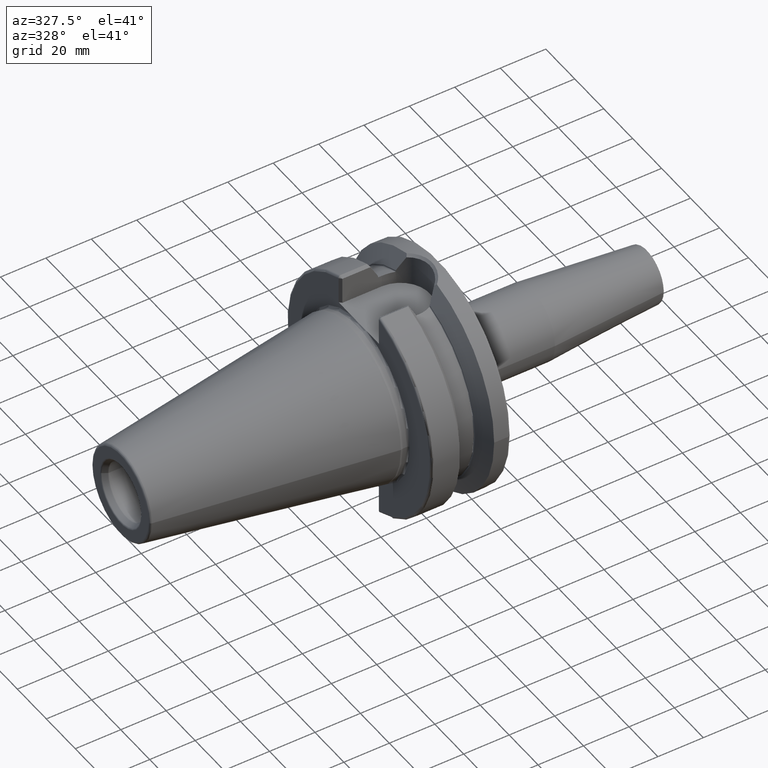
[diagram: clean part render]
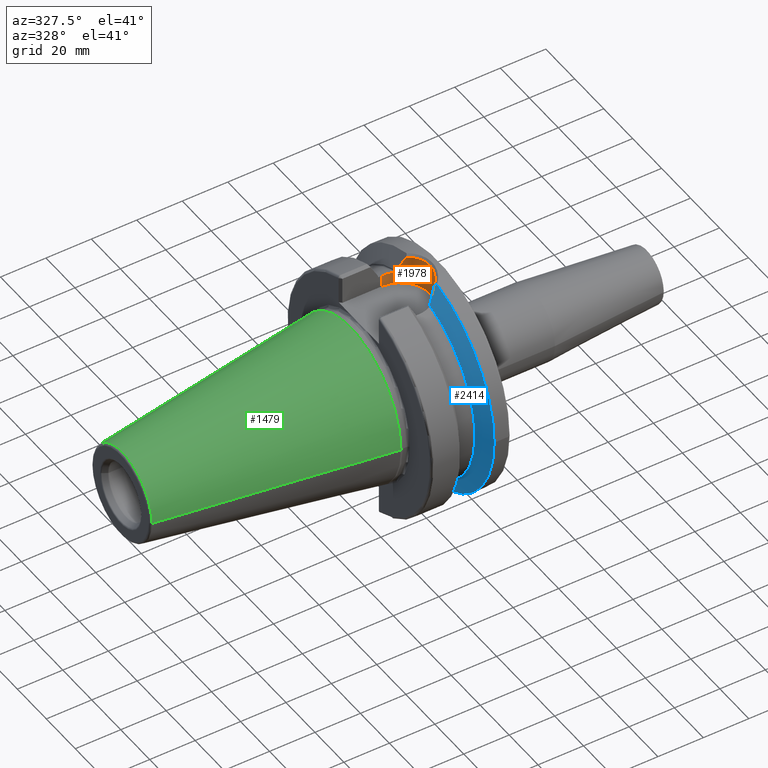
[diagram: same view with three faces highlighted in distinct colors, each labeled with its STEP entity id]
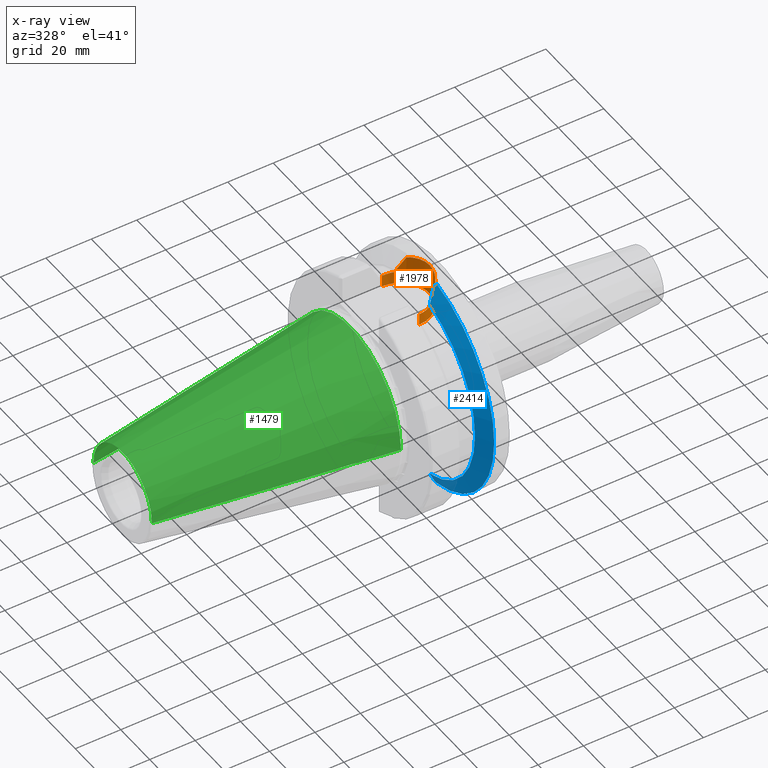
[diagram: x-ray of the same camera — body ghosted, the three highlighted faces saturated]
A machine part, auxiliary view with three faces highlighted in distinct colors.
The next image is the same camera in x-ray (body ghosted, the three faces saturated) — at least one of them is partly hidden behind the body in this view.
Their STEP definitions:

[orange] entity #1978 — the highlighted cylindrical surface (edge-blend (fillet) strip) has radius 12.9025 mm, axis along (0, 0, 1).
#361=CARTESIAN_POINT('',(2.64875E1,1.183447955129E1,4.068888937720E1));
#362=CARTESIAN_POINT('',(2.593767013310E1,1.207328392825E1,4.061943244291E1));
#363=CARTESIAN_POINT('',(2.482251458198E1,1.246756636177E1,4.050035379602E1));
#364=CARTESIAN_POINT('',(2.309259987866E1,1.282394305612E1,4.038817378856E1));
#365=CARTESIAN_POINT('',(2.193211835169E1,1.29025E1,4.036293000700E1));
#366=CARTESIAN_POINT('',(2.13475E1,1.29025E1,4.036293000700E1));
#380=CARTESIAN_POINT('',(2.13475E1,-1.29025E1,4.036293000700E1));
#381=CARTESIAN_POINT('',(2.193211835188E1,-1.29025E1,4.036293000700E1));
#382=CARTESIAN_POINT('',(2.309259987910E1,-1.282394305606E1,4.038817378858E1));
#383=CARTESIAN_POINT('',(2.482251458205E1,-1.246756636174E1,4.050035379603E1));
#384=CARTESIAN_POINT('',(2.593767013313E1,-1.207328392824E1,4.061943244291E1));
#385=CARTESIAN_POINT('',(2.64875E1,-1.183447955129E1,4.068888937720E1));
#468=DIRECTION('',(0.E0,0.E0,1.E0));
#469=VECTOR('',#468,5.162930007E0);
#470=CARTESIAN_POINT('',(2.13475E1,-1.29025E1,3.52E1));
#471=LINE('',#470,#469);
#472=CARTESIAN_POINT('',(2.67375E1,1.172273032403E1,4.098131548340E1));
#473=CARTESIAN_POINT('',(2.67375E1,1.172273032403E1,4.095473554554E1));
#474=CARTESIAN_POINT('',(2.672998645392E1,1.172618901674E1,4.090260058967E1));
#475=CARTESIAN_POINT('',(2.669626231199E1,1.174163763665E1,4.082489375053E1));
#476=CARTESIAN_POINT('',(2.663891469758E1,1.176763685688E1,4.075541966358E1));
#477=CARTESIAN_POINT('',(2.656490253593E1,1.180065791496E1,4.070695762482E1));
#478=CARTESIAN_POINT('',(2.651408131936E1,1.182293464297E1,4.069224724672E1));
#479=CARTESIAN_POINT('',(2.64875E1,1.183447955129E1,4.068888937720E1));
#481=DIRECTION('',(0.E0,0.E0,1.E0));
#482=VECTOR('',#481,4.638266941984E-1);
#483=CARTESIAN_POINT('',(2.67375E1,1.172273032403E1,4.098131548340E1));
#484=LINE('',#483,#482);
#485=CARTESIAN_POINT('',(3.006745596523E1,9.509830398822E0,4.790396451831E1));
#486=CARTESIAN_POINT('',(2.975376574683E1,9.797465906135E0,4.729293338983E1));
#487=CARTESIAN_POINT('',(2.908879078217E1,1.035010846105E1,4.599889189585E1));
#488=CARTESIAN_POINT('',(2.797778721927E1,1.109635283633E1,4.384252820130E1));
#489=CARTESIAN_POINT('',(2.716331106798E1,1.152694644153E1,4.226698076473E1));
#490=CARTESIAN_POINT('',(2.67375E1,1.172273032403E1,4.144514217760E1));
#492=CARTESIAN_POINT('',(3.006745596523E1,9.509830398822E0,4.790396451831E1));
#493=CARTESIAN_POINT('',(3.025602323543E1,9.336962247659E0,4.794381122211E1));
#494=CARTESIAN_POINT('',(3.087555960284E1,8.733968449164E0,4.807865814963E1));
#495=CARTESIAN_POINT('',(3.182329079822E1,7.604954293039E0,4.830628782978E1));
#496=CARTESIAN_POINT('',(3.278245826289E1,6.066530119911E0,4.855976175201E1));
#497=CARTESIAN_POINT('',(3.351388652994E1,4.419183995064E0,4.876698535386E1));
#498=CARTESIAN_POINT('',(3.400760487019E1,2.694887506994E0,4.891354792853E1));
#499=CARTESIAN_POINT('',(3.425791062555E1,9.253265654410E-1,4.898989734734E1));
#500=CARTESIAN_POINT('',(3.426247528429E1,-8.590494541089E-1,4.899130238765E1));
#501=CARTESIAN_POINT('',(3.402134509987E1,-2.629406522498E0,4.891770358422E1));
#502=CARTESIAN_POINT('',(3.353667477174E1,-4.355883298183E0,4.877363209671E1));
#503=CARTESIAN_POINT('',(3.281400217688E1,-6.006662285743E0,4.856845191646E1));
#504=CARTESIAN_POINT('',(3.186306851566E1,-7.549823393820E0,4.831638541797E1));
#505=CARTESIAN_POINT('',(3.090696912501E1,-8.701095609486E0,4.808579201701E1));
#506=CARTESIAN_POINT('',(3.027267380653E1,-9.321685205845E0,4.794733903084E1));
#507=CARTESIAN_POINT('',(3.006746015187E1,-9.509826559925E0,4.790397267337E1));
#509=CARTESIAN_POINT('',(2.67375E1,-1.172273032403E1,4.144514217760E1));
#510=CARTESIAN_POINT('',(2.716326249817E1,-1.152696877347E1,4.226688702234E1));
#511=CARTESIAN_POINT('',(2.797767730262E1,-1.109641946289E1,4.384231514855E1));
#512=CARTESIAN_POINT('',(2.908877542636E1,-1.035012398508E1,4.599886190686E1));
#513=CARTESIAN_POINT('',(2.975376209181E1,-9.797469511785E0,4.729292626465E1));
#514=CARTESIAN_POINT('',(3.006746015187E1,-9.509826559925E0,4.790397267337E1));
#516=DIRECTION('',(0.E0,0.E0,1.E0));
#517=VECTOR('',#516,4.638266941984E-1);
#518=CARTESIAN_POINT('',(2.67375E1,-1.172273032403E1,4.098131548340E1));
#519=LINE('',#518,#517);
#520=CARTESIAN_POINT('',(2.64875E1,-1.183447955129E1,4.068888937720E1));
#521=CARTESIAN_POINT('',(2.651408131936E1,-1.182293464297E1,4.069224724672E1));
#522=CARTESIAN_POINT('',(2.656490253593E1,-1.180065791496E1,4.070695762482E1));
#523=CARTESIAN_POINT('',(2.663891469758E1,-1.176763685688E1,4.075541966358E1));
#524=CARTESIAN_POINT('',(2.669626231199E1,-1.174163763665E1,4.082489375053E1));
#525=CARTESIAN_POINT('',(2.672998645392E1,-1.172618901674E1,4.090260058967E1));
#526=CARTESIAN_POINT('',(2.67375E1,-1.172273032403E1,4.095473554554E1));
#527=CARTESIAN_POINT('',(2.67375E1,-1.172273032403E1,4.098131548340E1));
#656=DIRECTION('',(0.E0,0.E0,1.E0));
#657=VECTOR('',#656,5.162930007E0);
#658=CARTESIAN_POINT('',(2.13475E1,1.29025E1,3.52E1));
#659=LINE('',#658,#657);
#691=CARTESIAN_POINT('',(2.13475E1,0.E0,3.52E1));
#692=DIRECTION('',(0.E0,0.E0,1.E0));
#693=DIRECTION('',(0.E0,-1.E0,0.E0));
#694=AXIS2_PLACEMENT_3D('',#691,#692,#693);
#1192=CARTESIAN_POINT('',(2.67375E1,-1.172273032403E1,4.098131548340E1));
#1194=VERTEX_POINT('',#1192);
#1197=CARTESIAN_POINT('',(2.64875E1,-1.183447955129E1,4.068888937720E1));
#1199=VERTEX_POINT('',#1197);
#1200=CARTESIAN_POINT('',(2.64875E1,1.183447955129E1,4.068888937720E1));
#1202=VERTEX_POINT('',#1200);
#1205=CARTESIAN_POINT('',(2.67375E1,1.172273032403E1,4.098131548340E1));
#1207=VERTEX_POINT('',#1205);
#1208=CARTESIAN_POINT('',(2.67375E1,1.172273032403E1,4.144514217760E1));
#1210=VERTEX_POINT('',#1208);
#1213=CARTESIAN_POINT('',(2.67375E1,-1.172273032403E1,4.144514217760E1));
#1215=VERTEX_POINT('',#1213);
#1306=CARTESIAN_POINT('',(2.13475E1,-1.29025E1,3.52E1));
#1307=CARTESIAN_POINT('',(2.13475E1,1.29025E1,3.52E1));
#1308=VERTEX_POINT('',#1306);
#1309=VERTEX_POINT('',#1307);
#1322=CARTESIAN_POINT('',(2.13475E1,1.29025E1,4.036293000700E1));
#1323=VERTEX_POINT('',#1322);
#1325=CARTESIAN_POINT('',(2.13475E1,-1.29025E1,4.036293000700E1));
#1326=VERTEX_POINT('',#1325);
#1328=VERTEX_POINT('',#514);
#1329=VERTEX_POINT('',#485);
#1953=CARTESIAN_POINT('',(2.13475E1,0.E0,3.52E1));
#1954=DIRECTION('',(0.E0,0.E0,1.E0));
#1955=DIRECTION('',(1.E0,0.E0,0.E0));
#1956=AXIS2_PLACEMENT_3D('',#1953,#1954,#1955);
#1957=CYLINDRICAL_SURFACE('',#1956,1.29025E1);
#1958=ORIENTED_EDGE('',*,*,#1862,.F.);
#1960=ORIENTED_EDGE('',*,*,#1959,.F.);
#1962=ORIENTED_EDGE('',*,*,#1961,.T.);
#1964=ORIENTED_EDGE('',*,*,#1963,.T.);
#1965=ORIENTED_EDGE('',*,*,#1844,.F.);
#1966=ORIENTED_EDGE('',*,*,#1935,.F.);
#1967=ORIENTED_EDGE('',*,*,#1907,.T.);
#1969=ORIENTED_EDGE('',*,*,#1968,.F.);
#1971=ORIENTED_EDGE('',*,*,#1970,.T.);
#1973=ORIENTED_EDGE('',*,*,#1972,.F.);
#1974=ORIENTED_EDGE('',*,*,#1919,.F.);
#1975=ORIENTED_EDGE('',*,*,#1948,.F.);
#1976=EDGE_LOOP('',(#1958,#1960,#1962,#1964,#1965,#1966,#1967,#1969,#1971,#1973,
#1974,#1975));
#1977=FACE_OUTER_BOUND('',#1976,.F.);
#1978=ADVANCED_FACE('',(#1977),#1957,.F.);
#367=B_SPLINE_CURVE_WITH_KNOTS('',3,(#361,#362,#363,#364,#365,#366),
.UNSPECIFIED.,.F.,.F.,(4,1,1,4),(0.E0,3.333333333333E-1,6.666666666667E-1,1.E0),
.UNSPECIFIED.);
#386=B_SPLINE_CURVE_WITH_KNOTS('',3,(#380,#381,#382,#383,#384,#385),
.UNSPECIFIED.,.F.,.F.,(4,1,1,4),(0.E0,3.333333333333E-1,6.666666666667E-1,1.E0),
.UNSPECIFIED.);
#480=B_SPLINE_CURVE_WITH_KNOTS('',3,(#472,#473,#474,#475,#476,#477,#478,#479),
.UNSPECIFIED.,.F.,.F.,(4,1,1,1,1,4),(0.E0,2.E-1,4.E-1,6.E-1,8.E-1,1.E0),
.UNSPECIFIED.);
#491=B_SPLINE_CURVE_WITH_KNOTS('',3,(#485,#486,#487,#488,#489,#490),
.UNSPECIFIED.,.F.,.F.,(4,1,1,4),(0.E0,3.333333333333E-1,6.666666666667E-1,1.E0),
.UNSPECIFIED.);
#508=B_SPLINE_CURVE_WITH_KNOTS('',3,(#492,#493,#494,#495,#496,#497,#498,#499,
#500,#501,#502,#503,#504,#505,#506,#507),.UNSPECIFIED.,.F.,.F.,(4,1,1,1,1,1,1,1,
1,1,1,1,1,4),(0.E0,3.546209800455E-2,1.196386243301E-1,2.038151506557E-1,
2.879916769813E-1,3.721682033068E-1,4.563447296324E-1,5.405212559580E-1,
6.246977822835E-1,7.088743086091E-1,7.930508349347E-1,8.772273612603E-1,
9.614038875858E-1,1.E0),.UNSPECIFIED.);
#515=B_SPLINE_CURVE_WITH_KNOTS('',3,(#509,#510,#511,#512,#513,#514),
.UNSPECIFIED.,.F.,.F.,(4,1,1,4),(0.E0,3.333333333333E-1,6.666666666667E-1,1.E0),
.UNSPECIFIED.);
#528=B_SPLINE_CURVE_WITH_KNOTS('',3,(#520,#521,#522,#523,#524,#525,#526,#527),
.UNSPECIFIED.,.F.,.F.,(4,1,1,1,1,4),(0.E0,2.E-1,4.E-1,6.E-1,8.E-1,1.E0),
.UNSPECIFIED.);
#695=CIRCLE('',#694,1.29025E1);
#1844=EDGE_CURVE('',#1202,#1323,#367,.T.);
#1862=EDGE_CURVE('',#1326,#1199,#386,.T.);
#1907=EDGE_CURVE('',#1207,#1210,#484,.T.);
#1919=EDGE_CURVE('',#1194,#1215,#519,.T.);
#1935=EDGE_CURVE('',#1207,#1202,#480,.T.);
#1948=EDGE_CURVE('',#1199,#1194,#528,.T.);
#1959=EDGE_CURVE('',#1308,#1326,#471,.T.);
#1961=EDGE_CURVE('',#1308,#1309,#695,.T.);
#1963=EDGE_CURVE('',#1309,#1323,#659,.T.);
#1968=EDGE_CURVE('',#1329,#1210,#491,.T.);
#1970=EDGE_CURVE('',#1329,#1328,#508,.T.);
#1972=EDGE_CURVE('',#1215,#1328,#515,.T.);

[blue] entity #2414 — the highlighted conical surface has half-angle 60 deg.
#245=CARTESIAN_POINT('',(3.073066823617E1,0.E0,0.E0));
#246=DIRECTION('',(1.E0,0.E0,0.E0));
#247=DIRECTION('',(0.E0,-1.E0,0.E0));
#248=AXIS2_PLACEMENT_3D('',#245,#246,#247);
#391=CARTESIAN_POINT('',(3.016210431090E1,-9.422168385896E0,-4.808834737145E1));
#392=CARTESIAN_POINT('',(2.984184465633E1,-9.721776927818E0,-4.746439031418E1));
#393=CARTESIAN_POINT('',(2.916110296190E1,-1.029742776940E1,-4.613939859477E1));
#394=CARTESIAN_POINT('',(2.801848253867E1,-1.107377940524E1,-4.392131510326E1));
#395=CARTESIAN_POINT('',(2.717774587881E1,-1.152030945269E1,-4.229484073698E1));
#396=CARTESIAN_POINT('',(2.67375E1,-1.172273032403E1,-4.144514217760E1));
#509=CARTESIAN_POINT('',(2.67375E1,-1.172273032403E1,4.144514217760E1));
#510=CARTESIAN_POINT('',(2.716326249817E1,-1.152696877347E1,4.226688702234E1));
#511=CARTESIAN_POINT('',(2.797767730262E1,-1.109641946289E1,4.384231514855E1));
#512=CARTESIAN_POINT('',(2.908877542636E1,-1.035012398508E1,4.599886190686E1));
#513=CARTESIAN_POINT('',(2.975376209181E1,-9.797469511785E0,4.729292626465E1));
#514=CARTESIAN_POINT('',(3.006746015187E1,-9.509826559925E0,4.790397267337E1));
#763=CARTESIAN_POINT('',(2.67375E1,0.E0,0.E0));
#764=DIRECTION('',(-1.E0,0.E0,0.E0));
#765=DIRECTION('',(0.E0,-2.721714149834E-1,-9.622487832499E-1));
#766=AXIS2_PLACEMENT_3D('',#763,#764,#765);
#768=CARTESIAN_POINT('',(3.073066823617E1,-1.024362896192E1,-4.892666166765E1));
#769=CARTESIAN_POINT('',(3.066616058198E1,-1.015105563406E1,-4.883189036884E1));
#770=CARTESIAN_POINT('',(3.053803749239E1,-9.966777409929E0,-4.864343408956E1));
#771=CARTESIAN_POINT('',(3.034851551012E1,-9.692952413043E0,-4.836399253968E1));
#772=CARTESIAN_POINT('',(3.022394652802E1,-9.512141392294E0,-4.817986911933E1));
#773=CARTESIAN_POINT('',(3.016210431090E1,-9.422168385896E0,-4.808834737145E1));
#792=CARTESIAN_POINT('',(3.073066823617E1,0.E0,0.E0));
#793=DIRECTION('',(1.E0,0.E0,0.E0));
#794=DIRECTION('',(0.E0,-2.094051574285E-1,9.778289625708E-1));
#795=AXIS2_PLACEMENT_3D('',#792,#793,#794);
#955=CARTESIAN_POINT('',(3.006746015187E1,-9.509826559925E0,4.790397267337E1));
#956=CARTESIAN_POINT('',(3.013934013849E1,-9.614488815529E0,4.801012460295E1));
#957=CARTESIAN_POINT('',(3.028430182064E1,-9.824984272055E0,4.822389705980E1));
#958=CARTESIAN_POINT('',(3.050537248019E1,-1.014426259119E1,4.854898701617E1));
#959=CARTESIAN_POINT('',(3.065516521337E1,-1.035945529402E1,4.876865319706E1));
#960=CARTESIAN_POINT('',(3.073066823617E1,-1.046764030696E1,4.887922526651E1));
#1212=CARTESIAN_POINT('',(2.67375E1,-1.172273032403E1,-4.144514217760E1));
#1213=CARTESIAN_POINT('',(2.67375E1,-1.172273032403E1,4.144514217760E1));
#1214=VERTEX_POINT('',#1212);
#1215=VERTEX_POINT('',#1213);
#1228=CARTESIAN_POINT('',(3.073066823617E1,-4.99875E1,-1.224340637448E-14));
#1229=CARTESIAN_POINT('',(3.073066823617E1,-1.024362896192E1,
-4.892666166765E1));
#1230=VERTEX_POINT('',#1228);
#1231=VERTEX_POINT('',#1229);
#1236=CARTESIAN_POINT('',(3.073066823617E1,-1.046764030696E1,4.887922526651E1));
#1237=VERTEX_POINT('',#1236);
#1328=VERTEX_POINT('',#514);
#1336=VERTEX_POINT('',#391);
#2397=CARTESIAN_POINT('',(2.873408411809E1,0.E0,0.E0));
#2398=DIRECTION('',(1.E0,0.E0,0.E0));
#2399=DIRECTION('',(0.E0,-1.E0,0.E0));
#2400=AXIS2_PLACEMENT_3D('',#2397,#2398,#2399);
#2401=CONICAL_SURFACE('',#2400,4.652931486589E1,6.E1);
#2403=ORIENTED_EDGE('',*,*,#2402,.T.);
#2404=ORIENTED_EDGE('',*,*,#1753,.T.);
#2406=ORIENTED_EDGE('',*,*,#2405,.T.);
#2407=ORIENTED_EDGE('',*,*,#1876,.T.);
#2408=ORIENTED_EDGE('',*,*,#1921,.T.);
#2409=ORIENTED_EDGE('',*,*,#1972,.T.);
#2411=ORIENTED_EDGE('',*,*,#2410,.T.);
#2412=EDGE_LOOP('',(#2403,#2404,#2406,#2407,#2408,#2409,#2411));
#2413=FACE_OUTER_BOUND('',#2412,.F.);
#2414=ADVANCED_FACE('',(#2413),#2401,.T.);
#249=CIRCLE('',#248,4.99875E1);
#397=B_SPLINE_CURVE_WITH_KNOTS('',3,(#391,#392,#393,#394,#395,#396),
.UNSPECIFIED.,.F.,.F.,(4,1,1,4),(0.E0,3.333333333333E-1,6.666666666667E-1,1.E0),
.UNSPECIFIED.);
#515=B_SPLINE_CURVE_WITH_KNOTS('',3,(#509,#510,#511,#512,#513,#514),
.UNSPECIFIED.,.F.,.F.,(4,1,1,4),(0.E0,3.333333333333E-1,6.666666666667E-1,1.E0),
.UNSPECIFIED.);
#767=CIRCLE('',#766,4.307112973177E1);
#774=B_SPLINE_CURVE_WITH_KNOTS('',3,(#768,#769,#770,#771,#772,#773),
.UNSPECIFIED.,.F.,.F.,(4,1,1,4),(0.E0,3.333333333333E-1,6.666666666667E-1,1.E0),
.UNSPECIFIED.);
#796=CIRCLE('',#795,4.99875E1);
#961=B_SPLINE_CURVE_WITH_KNOTS('',3,(#955,#956,#957,#958,#959,#960),
.UNSPECIFIED.,.F.,.F.,(4,1,1,4),(0.E0,3.333333333333E-1,6.666666666667E-1,1.E0),
.UNSPECIFIED.);
#1753=EDGE_CURVE('',#1230,#1231,#249,.T.);
#1876=EDGE_CURVE('',#1336,#1214,#397,.T.);
#1921=EDGE_CURVE('',#1214,#1215,#767,.T.);
#1972=EDGE_CURVE('',#1215,#1328,#515,.T.);
#2402=EDGE_CURVE('',#1237,#1230,#796,.T.);
#2405=EDGE_CURVE('',#1231,#1336,#774,.T.);
#2410=EDGE_CURVE('',#1328,#1237,#961,.T.);

[green] entity #1479 — the highlighted conical surface has half-angle 8.298 deg.
#37=CARTESIAN_POINT('',(-1.009443186692E2,0.E0,0.E0));
#38=DIRECTION('',(1.E0,0.E0,0.E0));
#39=DIRECTION('',(0.E0,1.E0,0.E0));
#40=AXIS2_PLACEMENT_3D('',#37,#38,#39);
#42=CARTESIAN_POINT('',(-6.191906162850E-1,0.E0,0.E0));
#43=DIRECTION('',(1.E0,0.E0,0.E0));
#44=DIRECTION('',(0.E0,1.E0,0.E0));
#45=AXIS2_PLACEMENT_3D('',#42,#43,#44);
#47=DIRECTION('',(-9.895312636440E-1,-1.443186691705E-1,0.E0));
#48=VECTOR('',#47,1.013865167670E2);
#49=CARTESIAN_POINT('',(-6.191906162849E-1,3.483469384295E1,0.E0));
#50=LINE('',#49,#48);
#51=DIRECTION('',(-9.895312636440E-1,1.443186691705E-1,0.E0));
#52=VECTOR('',#51,1.013865167670E2);
#53=CARTESIAN_POINT('',(-6.191906162849E-1,-3.483469384295E1,0.E0));
#54=LINE('',#53,#52);
#1168=CARTESIAN_POINT('',(-1.009443186692E2,2.020272667130E1,0.E0));
#1170=VERTEX_POINT('',#1168);
#1172=CARTESIAN_POINT('',(-1.009443186692E2,-2.020272667130E1,0.E0));
#1174=VERTEX_POINT('',#1172);
#1387=CARTESIAN_POINT('',(-6.191906162849E-1,3.483469384295E1,0.E0));
#1388=VERTEX_POINT('',#1387);
#1389=CARTESIAN_POINT('',(-6.191906162849E-1,-3.483469384295E1,0.E0));
#1390=VERTEX_POINT('',#1389);
#1465=CARTESIAN_POINT('',(-5.078175464273E1,0.E0,0.E0));
#1466=DIRECTION('',(1.E0,0.E0,0.E0));
#1467=DIRECTION('',(0.E0,-1.E0,0.E0));
#1468=AXIS2_PLACEMENT_3D('',#1465,#1466,#1467);
#1469=CONICAL_SURFACE('',#1468,2.751871025712E1,8.297826828206E0);
#1471=ORIENTED_EDGE('',*,*,#1470,.F.);
#1473=ORIENTED_EDGE('',*,*,#1472,.T.);
#1475=ORIENTED_EDGE('',*,*,#1474,.T.);
#1476=ORIENTED_EDGE('',*,*,#1458,.F.);
#1477=EDGE_LOOP('',(#1471,#1473,#1475,#1476));
#1478=FACE_OUTER_BOUND('',#1477,.F.);
#1479=ADVANCED_FACE('',(#1478),#1469,.T.);
#41=CIRCLE('',#40,2.020272667130E1);
#46=CIRCLE('',#45,3.483469384295E1);
#1458=EDGE_CURVE('',#1170,#1174,#41,.T.);
#1470=EDGE_CURVE('',#1388,#1170,#50,.T.);
#1472=EDGE_CURVE('',#1388,#1390,#46,.T.);
#1474=EDGE_CURVE('',#1390,#1174,#54,.T.);